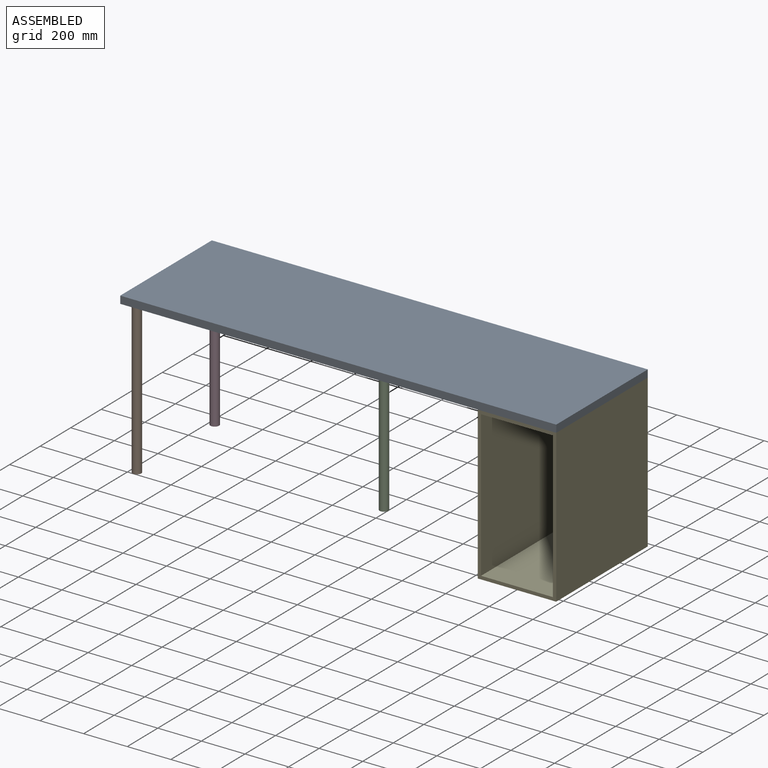
[diagram: assembled view]
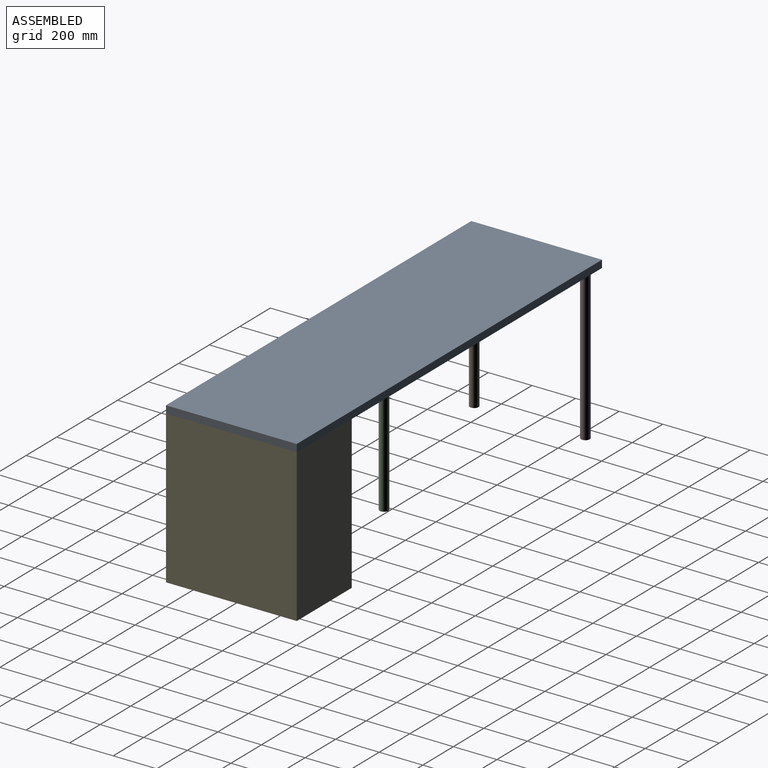
[diagram: assembled view, second angle]
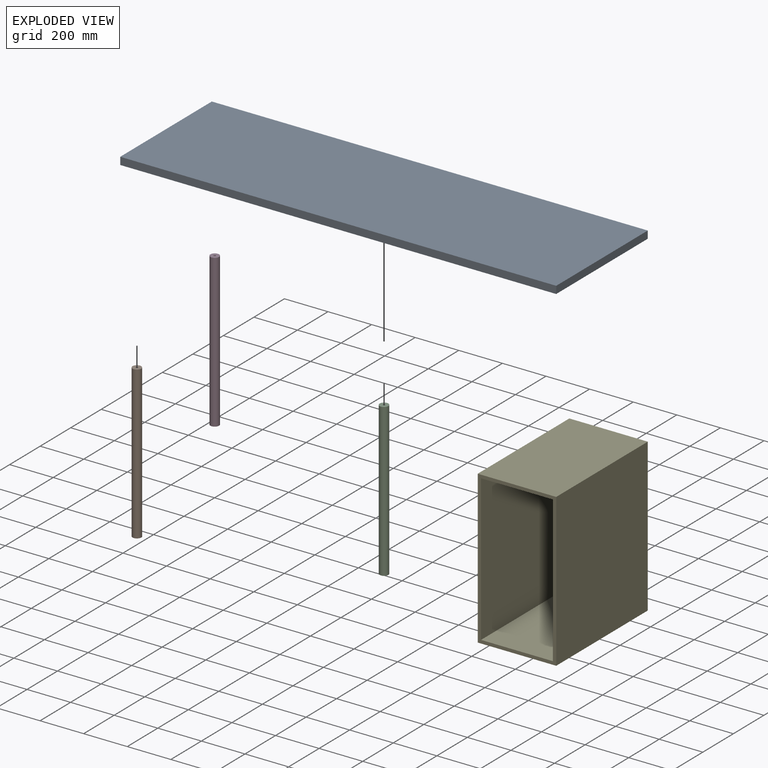
[diagram: exploded view]
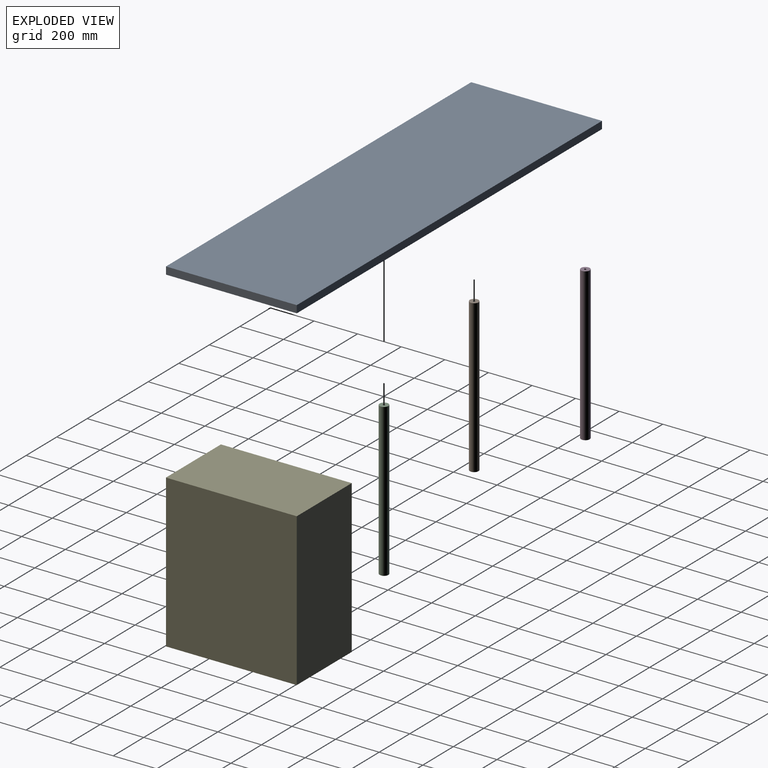
[diagram: exploded view, second angle]
ASSEMBLY  parts=5 mates=4
PART A: 16 faces, bbox 2000x600x40 mm
  f0: plane 600x34mm, normal (1,0,0), area 20400mm2, adj f1,f3,f4,f5
  f1: plane 2000x34mm, normal (0,1,0), area 68000mm2, adj f0,f2,f4,f5
  f2: plane 600x34mm, normal (-1,0,0), area 20400mm2, adj f1,f3,f4,f5
  f3: plane 2000x34mm, normal (0,-1,0), area 68000mm2, adj f0,f2,f4,f5
  f4: plane 2000x600mm, normal (0,0,-1), area 1199607.3mm2, adj f0,f1,f2,f3,f6,f8,f10,f12
  f5: plane 2000x600mm, normal (0,0,1), area 1200000mm2, adj f0,f1,f2,f3
  f6: cylinder r=5mm len=10mm, axis (0,0,1), area 188.5mm2, adj f4,f7
  f7: plane 10x10mm, normal (0,0,-1), area 78.5mm2, adj f6
  f8: cylinder r=5mm len=10mm, axis (0,0,1), area 188.5mm2, adj f4,f9
  f9: plane 10x10mm, normal (0,0,-1), area 78.5mm2, adj f8
  f10: cylinder r=5mm len=10mm, axis (0,0,1), area 188.5mm2, adj f4,f11
  f11: plane 10x10mm, normal (0,0,-1), area 78.5mm2, adj f10
  f12: cylinder r=5mm len=10mm, axis (0,0,1), area 188.5mm2, adj f4,f13
  f13: plane 10x10mm, normal (0,0,-1), area 78.5mm2, adj f12
  f14: cylinder r=5mm len=10mm, axis (0,0,1), area 188.5mm2, adj f4,f15
  f15: plane 10x10mm, normal (0,0,-1), area 78.5mm2, adj f14
PART B: 5 faces, bbox 40x40x700 mm
  f0: cylinder r=20mm len=700mm, axis (0,0,1), area 87964.6mm2, adj f1,f2
  f1: plane 40x40mm, normal (0,0,-1), area 1256.6mm2, adj f0
  f2: plane 40x40mm, normal (0,0,1), area 1178.1mm2, adj f0,f3
  f3: cylinder r=5mm len=10mm, axis (0,0,1), area 188.5mm2, adj f2,f4
  f4: plane 10x10mm, normal (0,0,1), area 78.5mm2, adj f3
PART C: same geometry as B
PART D: same geometry as B
PART E: 11 faces, bbox 360x600x700 mm
  f0: plane 700x600mm, normal (1,0,0), area 420000mm2, adj f1,f3,f4,f5
  f1: plane 700x360mm, normal (0,1,0), area 252000mm2, adj f0,f2,f4,f5
  f2: plane 700x600mm, normal (-1,0,0), area 420000mm2, adj f1,f3,f4,f5
  f3: plane 700x360mm, normal (0,-1,0), area 30900mm2, adj f0,f2,f4,f5,f7,f8,f9,f10
  f4: plane 600x360mm, normal (0,0,-1), area 216000mm2, adj f0,f1,f2,f3
  f5: plane 600x360mm, normal (0,0,1), area 216000mm2, adj f0,f1,f2,f3
  f6: plane 670x330mm, normal (0,-1,0), area 221100mm2, adj f7,f8,f9,f10
  f7: plane 670x585mm, normal (-1,0,0), area 391950mm2, adj f3,f6,f8,f10
  f8: plane 585x330mm, normal (0,0,-1), area 193050mm2, adj f3,f6,f7,f9
  f9: plane 670x585mm, normal (1,0,0), area 391950mm2, adj f3,f6,f8,f10
  f10: plane 585x330mm, normal (0,0,1), area 193050mm2, adj f3,f6,f7,f9
PLACE A t=(353.09,-650.92,88.65)mm
PLACE B t=(-601.91,-905.92,51.65)mm
PLACE C t=(353.09,-650.92,54.65)mm
PLACE D t=(-601.91,-395.92,54.65)mm
PLACE E t=(1173.09,-650.92,54.65)mm
MATE planar E.f5 <-> A.f4  axis (0,0,1) through (1173.09,-650.92,54.65)mm
MATE fastened A.f8 <-> B.f3  axis (0,0,-1) through (-601.91,-905.92,48.65)mm
MATE fastened D.f3 <-> A.f6  axis (0,0,1) through (-601.91,-395.92,48.65)mm
MATE fastened A.f14 <-> C.f3  axis (0,0,-1) through (353.09,-650.92,48.65)mm
